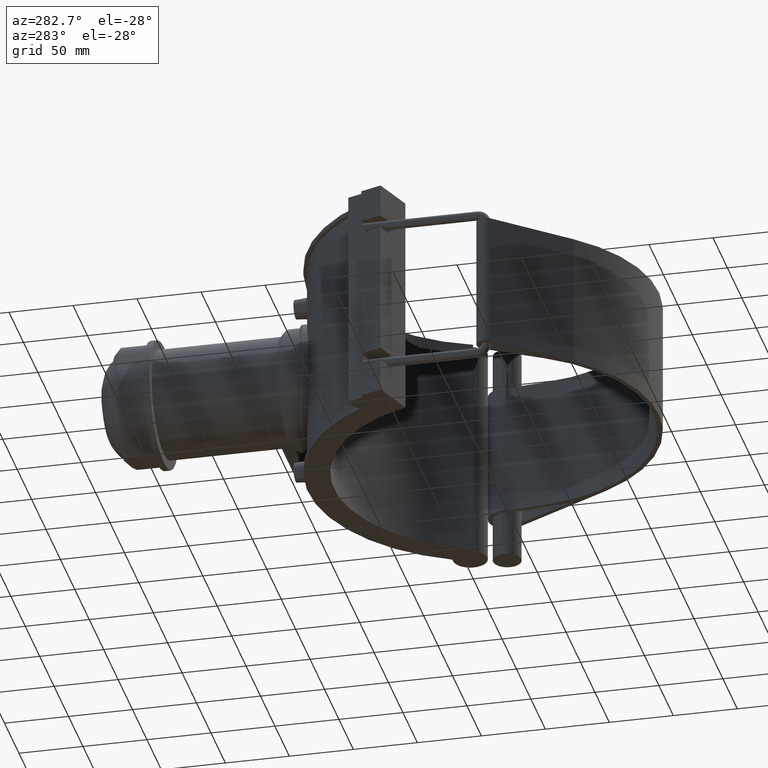
[diagram: clean part render]
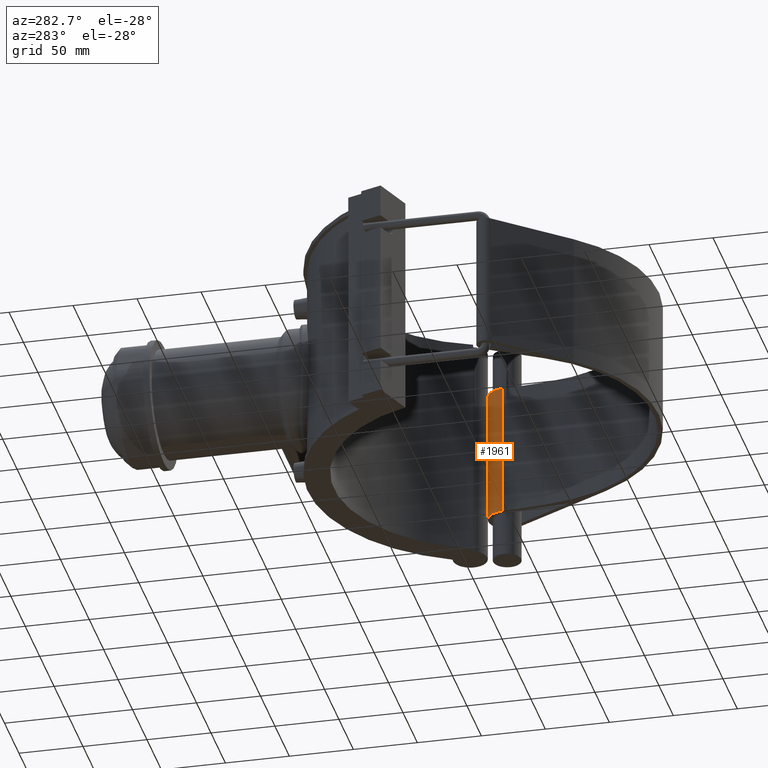
[diagram: same view with one face highlighted and labeled with its STEP entity id]
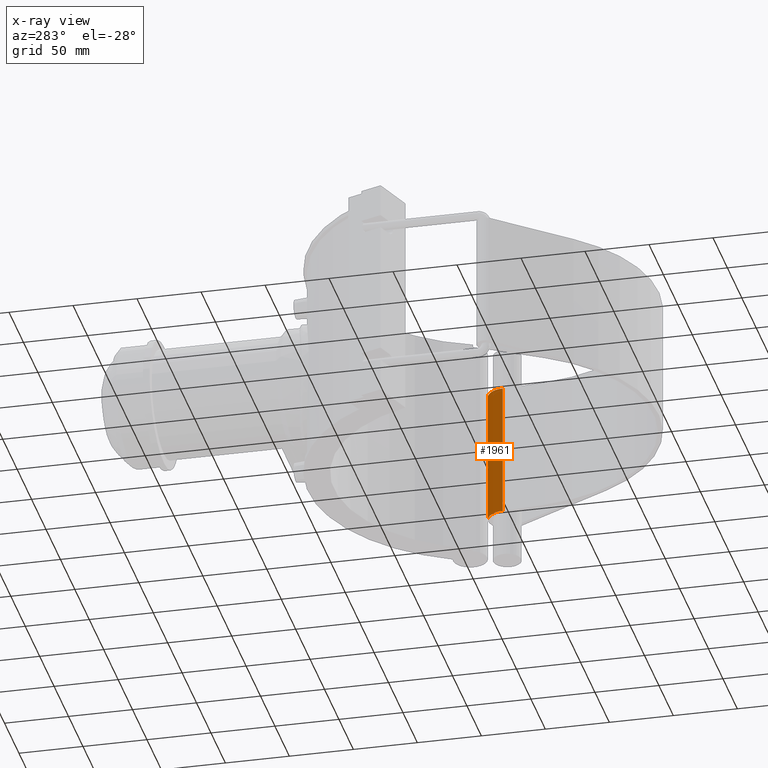
[diagram: x-ray of the same camera — body ghosted, the highlighted face saturated]
A machine part, auxiliary view. The second image highlights one B-rep face of the part: STEP entity #1961.
The next image is the same camera in x-ray: the body ghosted, the highlighted face saturated — about 0% of this face is hidden behind the body in this view.
In plain terms, the highlighted cylindrical surface (edge-blend (fillet) strip) has radius 14.8077 mm, axis along (0, 0, 1).
Its self-contained STEP definition (entity closure, byte-faithful):
#186=LINE('',#3531,#347);
#188=LINE('',#3535,#349);
#347=VECTOR('',#2677,105.6);
#349=VECTOR('',#2683,105.6);
#436=CYLINDRICAL_SURFACE('',#2157,14.8076923076923);
#540=FACE_OUTER_BOUND('',#682,.T.);
#682=EDGE_LOOP('',(#1691,#1692,#1693,#1694));
#767=CIRCLE('',#2080,14.8076923076923);
#779=CIRCLE('',#2093,14.8076923076923);
#888=VERTEX_POINT('',#3275);
#889=VERTEX_POINT('',#3276);
#909=VERTEX_POINT('',#3318);
#910=VERTEX_POINT('',#3320);
#1102=EDGE_CURVE('',#888,#889,#767,.T.);
#1124=EDGE_CURVE('',#909,#910,#779,.T.);
#1228=EDGE_CURVE('',#910,#888,#186,.T.);
#1230=EDGE_CURVE('',#889,#909,#188,.T.);
#1691=ORIENTED_EDGE('',*,*,#1228,.F.);
#1692=ORIENTED_EDGE('',*,*,#1124,.F.);
#1693=ORIENTED_EDGE('',*,*,#1230,.F.);
#1694=ORIENTED_EDGE('',*,*,#1102,.F.);
#1961=ADVANCED_FACE('',(#540),#436,.T.);
#2080=AXIS2_PLACEMENT_3D('',#3277,#2441,#2442);
#2093=AXIS2_PLACEMENT_3D('',#3321,#2477,#2478);
#2157=AXIS2_PLACEMENT_3D('',#3534,#2681,#2682);
#2441=DIRECTION('center_axis',(0.,0.,-1.));
#2442=DIRECTION('ref_axis',(0.333937766224138,-0.942595124265574,0.));
#2477=DIRECTION('center_axis',(0.,0.,1.));
#2478=DIRECTION('ref_axis',(0.333937766224138,-0.942595124265574,0.));
#2677=DIRECTION('',(0.,0.,-1.));
#2681=DIRECTION('center_axis',(0.,0.,1.));
#2682=DIRECTION('ref_axis',(0.333937766224138,-0.942595124265574,0.));
#2683=DIRECTION('',(0.,0.,1.));
#3275=CARTESIAN_POINT('',(127.112526086027,21.8078621826871,-52.8));
#3276=CARTESIAN_POINT('',(137.721878529248,35.8284318855429,-52.8));
#3277=CARTESIAN_POINT('Origin',(141.91912660323,21.6280494933414,-52.8));
#3318=CARTESIAN_POINT('',(137.721878529248,35.8284318855429,52.8));
#3320=CARTESIAN_POINT('',(127.112526086027,21.8078621826871,52.8));
#3321=CARTESIAN_POINT('Origin',(141.91912660323,21.6280494933414,52.8));
#3531=CARTESIAN_POINT('',(127.112526086027,21.8078621826871,0.));
#3534=CARTESIAN_POINT('Origin',(141.91912660323,21.6280494933414,0.));
#3535=CARTESIAN_POINT('',(137.721878529248,35.8284318855429,0.));